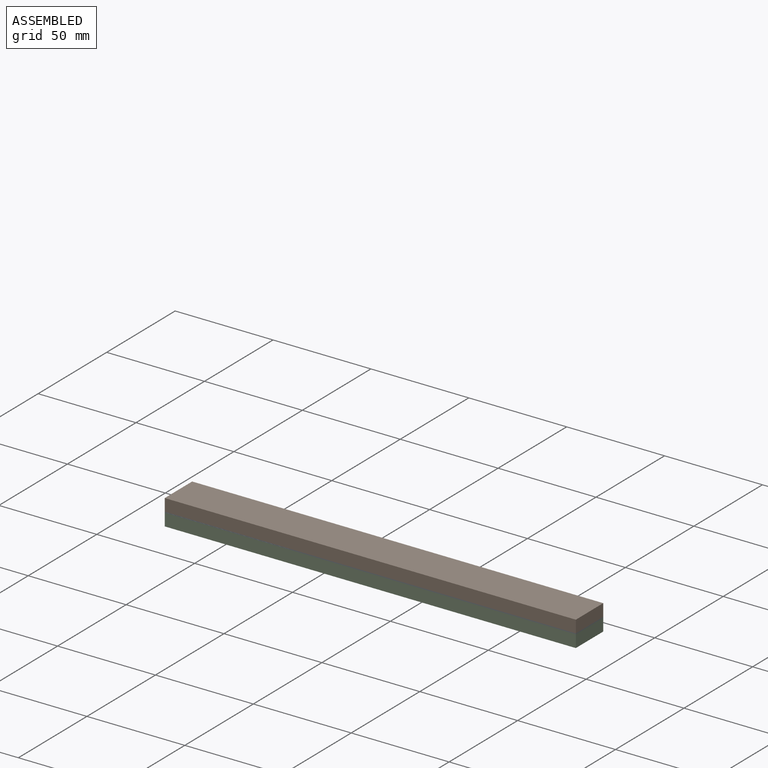
[diagram: assembled view]
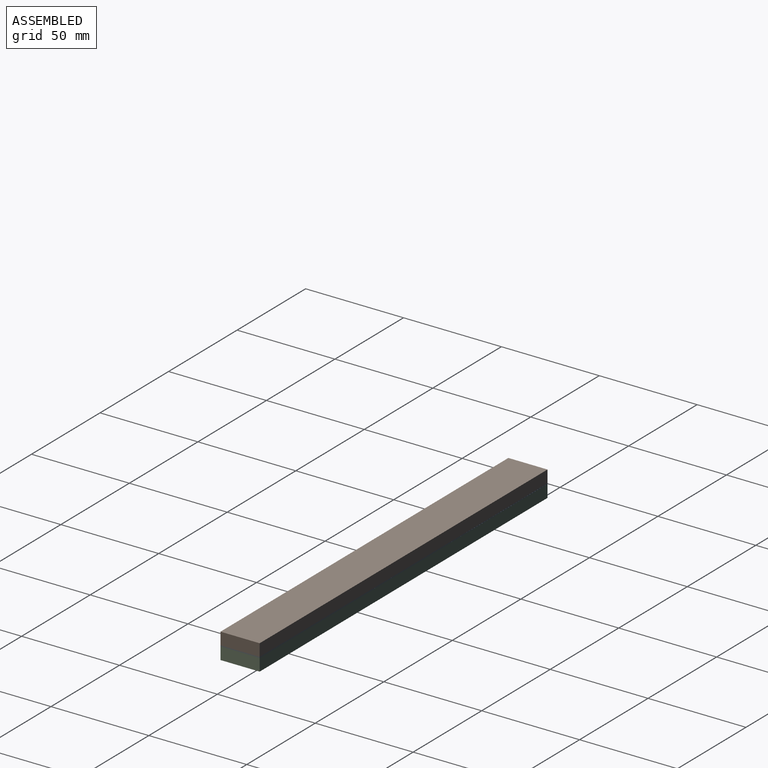
[diagram: assembled view, second angle]
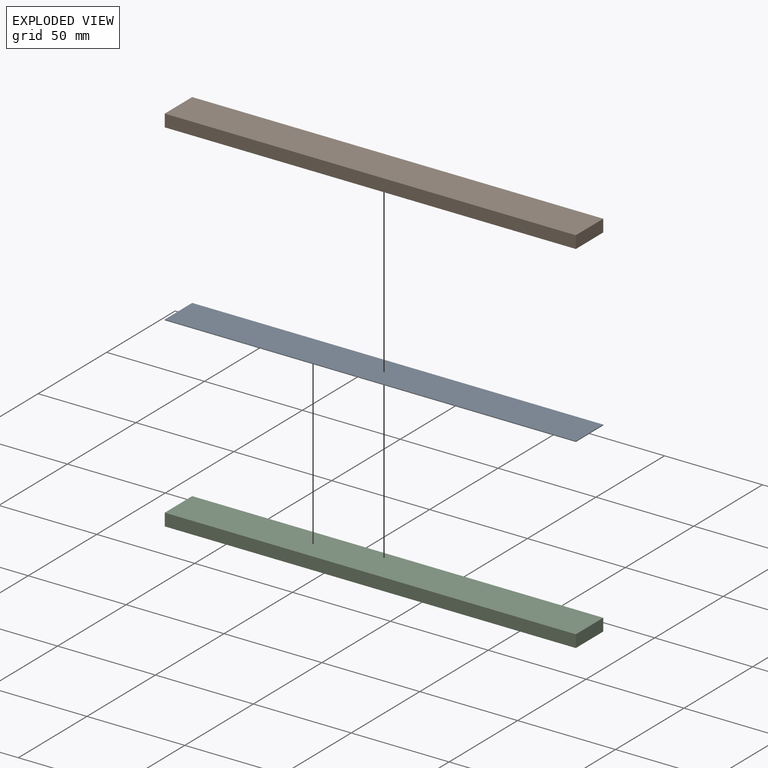
[diagram: exploded view]
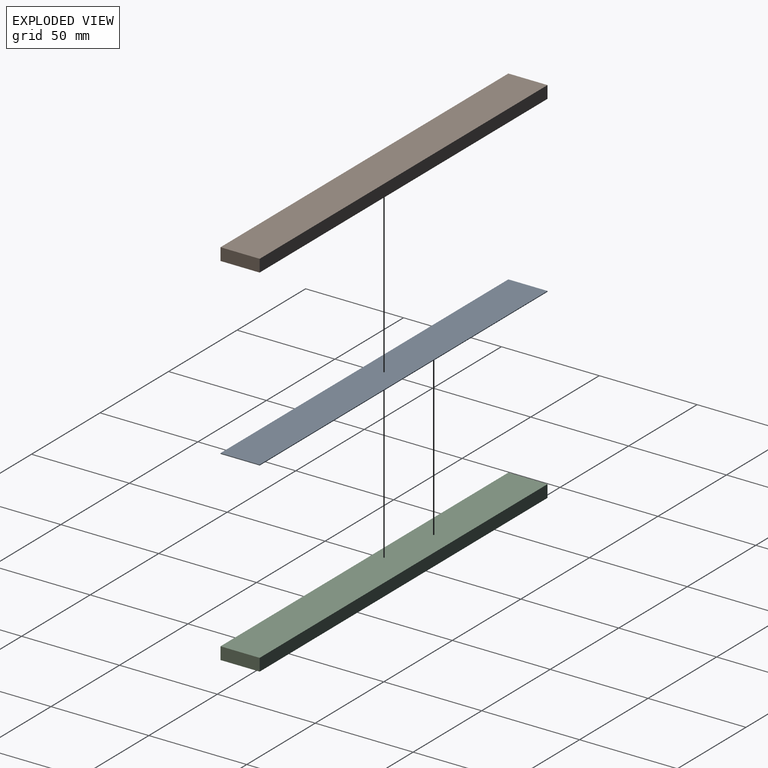
[diagram: exploded view, second angle]
ASSEMBLY  parts=3 mates=2
PART A: 10 faces, bbox 210x20x0.4 mm
  f0: plane 20x0.4mm, normal (1,0,0), area 8mm2, adj f1,f7,f8,f9
  f1: plane 210x20mm, normal (0,0,1), area 4200mm2, adj f0,f2,f8,f9
  f2: plane 20x0.19mm, normal (-1,0,0), area 3.8mm2, adj f1,f3,f8,f9
  f3: plane 65x20mm, normal (0,0,-1), area 1300mm2, adj f2,f4,f8,f9
  f4: plane 20x0.02mm, normal (-1,0,0), area 0.4mm2, adj f3,f5,f8,f9
  f5: plane 65x20mm, normal (0,0,1), area 1300mm2, adj f4,f6,f8,f9
  f6: plane 20x0.19mm, normal (-1,0,0), area 3.8mm2, adj f5,f7,f8,f9
  f7: plane 210x20mm, normal (0,0,-1), area 4200mm2, adj f0,f6,f8,f9
  f8: plane 210x0.4mm, normal (0,-1,0), area 82.7mm2, adj f0,f1,f2,f3,f4,f5,f6,f7
  f9: plane 210x0.4mm, normal (0,1,0), area 82.7mm2, adj f0,f1,f2,f3,f4,f5,f6,f7
PART B: 6 faces, bbox 210x20x6.4 mm
  f0: plane 20x6.35mm, normal (1,0,0), area 127mm2, adj f1,f3,f4,f5
  f1: plane 210x20mm, normal (0,0,1), area 4200mm2, adj f0,f2,f4,f5
  f2: plane 20x6.35mm, normal (-1,0,0), area 127mm2, adj f1,f3,f4,f5
  f3: plane 210x20mm, normal (0,0,-1), area 4200mm2, adj f0,f2,f4,f5
  f4: plane 210x6.35mm, normal (0,-1,0), area 1333.5mm2, adj f0,f1,f2,f3
  f5: plane 210x6.35mm, normal (0,1,0), area 1333.5mm2, adj f0,f1,f2,f3
PART C: same geometry as B
PLACE A t=(-9.29,18.61,20.96)mm
PLACE B t=(-9.29,18.61,24.34)mm
PLACE C t=(-9.29,18.61,17.59)mm
MATE fastened B.f3 <-> A.f1  axis (0,0,-1) through (-9.29,8.61,21.16)mm
MATE fastened C.f1 <-> A.f7  axis (0,0,1) through (-9.29,8.61,20.76)mm
